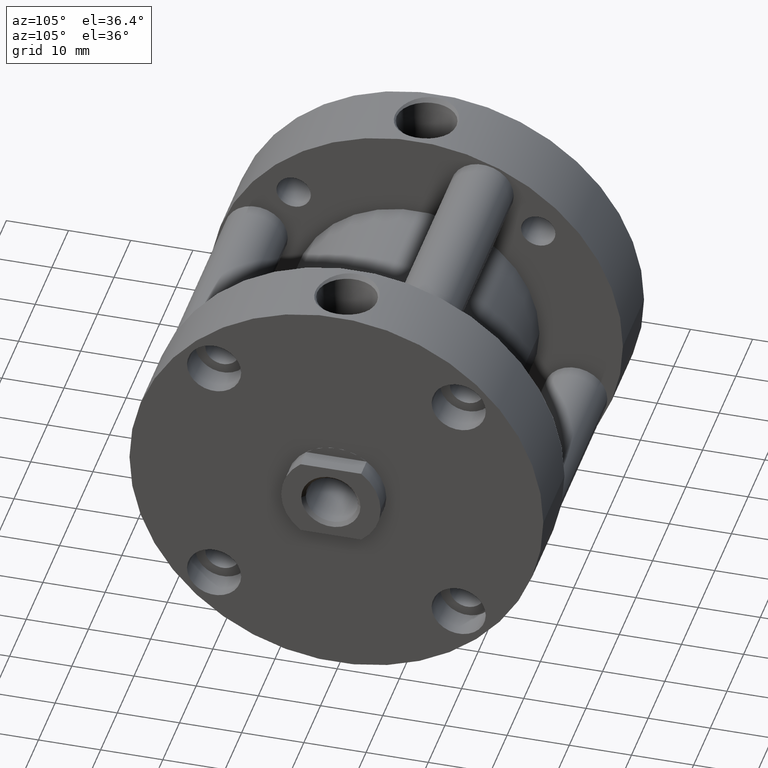
[diagram: clean part render]
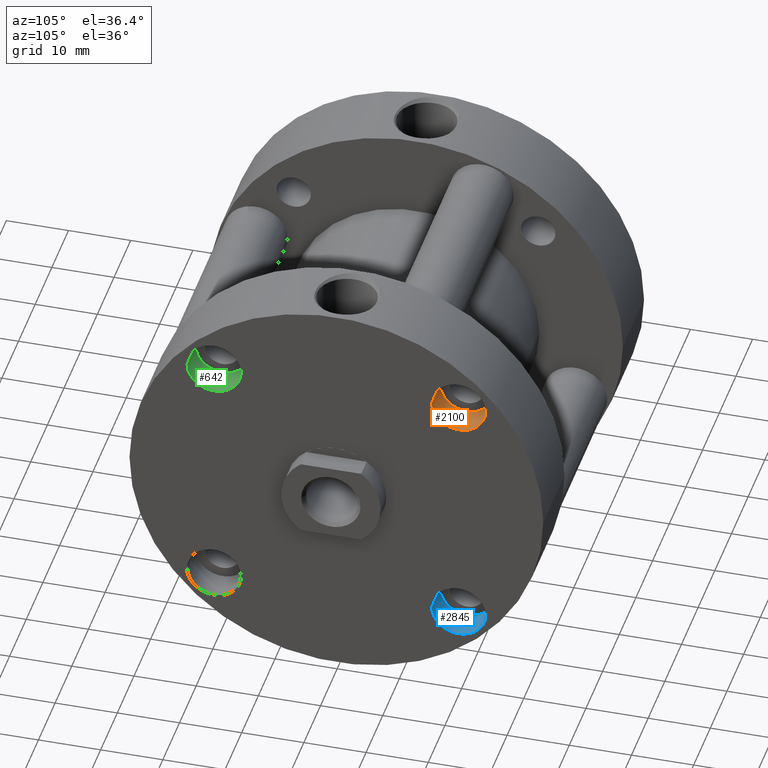
[diagram: same view with three faces highlighted in distinct colors, each labeled with its STEP entity id]
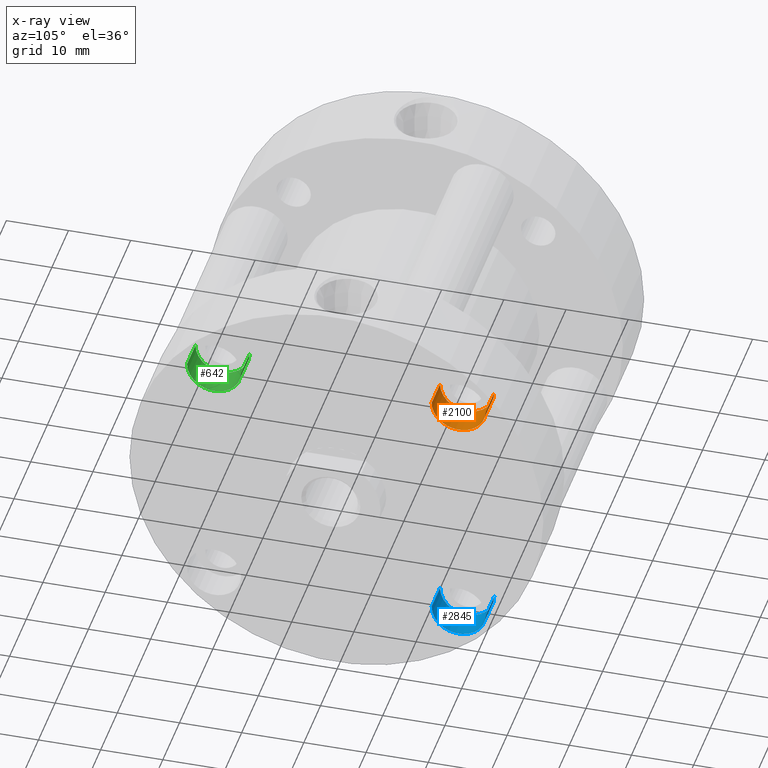
[diagram: x-ray of the same camera — body ghosted, the three highlighted faces saturated]
A machine part, auxiliary view with three faces highlighted in distinct colors.
The next image is the same camera in x-ray (body ghosted, the three faces saturated) — at least one of them is partly hidden behind the body in this view.
Their STEP definitions:

[orange] entity #2100 — the highlighted cylindrical surface (edge-blend (fillet) strip) has radius 4.3561 mm, axis along (1, 0, 0).
#30 = EDGE_LOOP ( 'NONE', ( #4426, #975, #4103, #3921 ) ) ;
#403 = CIRCLE ( 'NONE', #2419, 0.1715000000000004900 ) ;
#420 = DIRECTION ( 'NONE',  ( -0.0000000000000000000, 1.000000000000000000, -0.0000000000000000000 ) ) ;
#481 = CIRCLE ( 'NONE', #1359, 0.1715000000000006200 ) ;
#497 = AXIS2_PLACEMENT_3D ( 'NONE', #2182, #420, #2887 ) ;
#577 = CYLINDRICAL_SURFACE ( 'NONE', #497, 0.1715000000000005400 ) ;
#649 = LINE ( 'NONE', #2039, #4300 ) ;
#684 = EDGE_CURVE ( 'NONE', #4571, #775, #649, .T. ) ;
#688 = FACE_OUTER_BOUND ( 'NONE', #30, .T. ) ;
#714 = CARTESIAN_POINT ( 'NONE',  ( -0.7742819253992521100, 0.3000000000000001000, -0.7742819253992521100 ) ) ;
#775 = VERTEX_POINT ( 'NONE', #4343 ) ;
#975 = ORIENTED_EDGE ( 'NONE', *, *, #3211, .F. ) ;
#1077 = DIRECTION ( 'NONE',  ( 0.0000000000000000000, 0.0000000000000000000, 1.000000000000000000 ) ) ;
#1359 = AXIS2_PLACEMENT_3D ( 'NONE', #2083, #4556, #2438 ) ;
#2039 = CARTESIAN_POINT ( 'NONE',  ( -0.7742819253992521100, 0.5000000000000000000, -0.9457819253992526500 ) ) ;
#2083 = CARTESIAN_POINT ( 'NONE',  ( -0.7742819253992521100, 0.5000000000000001100, -0.7742819253992521100 ) ) ;
#2100 = ADVANCED_FACE ( 'CYL_4', ( #688 ), #577, .F. ) ;
#2182 = CARTESIAN_POINT ( 'NONE',  ( -0.7742819253992521100, 0.5000000000000000000, -0.7742819253992521100 ) ) ;
#2244 = CARTESIAN_POINT ( 'NONE',  ( -0.7742819253992521100, 0.5000000000000001100, -0.6027819253992514600 ) ) ;
#2361 = CARTESIAN_POINT ( 'NONE',  ( -0.7742819253992521100, 0.5000000000000000000, -0.6027819253992515700 ) ) ;
#2419 = AXIS2_PLACEMENT_3D ( 'NONE', #714, #3188, #1077 ) ;
#2438 = DIRECTION ( 'NONE',  ( 0.0000000000000000000, 0.0000000000000000000, 1.000000000000000000 ) ) ;
#2578 = EDGE_CURVE ( 'NONE', #4046, #4185, #2690, .T. ) ;
#2690 = LINE ( 'NONE', #2361, #4464 ) ;
#2752 = DIRECTION ( 'NONE',  ( -0.0000000000000000000, 1.000000000000000000, -0.0000000000000000000 ) ) ;
#2887 = DIRECTION ( 'NONE',  ( 0.0000000000000000000, 0.0000000000000000000, 1.000000000000000000 ) ) ;
#3188 = DIRECTION ( 'NONE',  ( -0.0000000000000000000, 1.000000000000000000, -0.0000000000000000000 ) ) ;
#3211 = EDGE_CURVE ( 'NONE', #4046, #4571, #403, .T. ) ;
#3263 = CARTESIAN_POINT ( 'NONE',  ( -0.7742819253992521100, 0.3000000000000001000, -0.9457819253992525400 ) ) ;
#3446 = DIRECTION ( 'NONE',  ( -0.0000000000000000000, 1.000000000000000000, -0.0000000000000000000 ) ) ;
#3921 = ORIENTED_EDGE ( 'NONE', *, *, #4324, .T. ) ;
#4046 = VERTEX_POINT ( 'NONE', #4306 ) ;
#4103 = ORIENTED_EDGE ( 'NONE', *, *, #2578, .T. ) ;
#4185 = VERTEX_POINT ( 'NONE', #2244 ) ;
#4300 = VECTOR ( 'NONE', #2752, 39.37007874015748100 ) ;
#4306 = CARTESIAN_POINT ( 'NONE',  ( -0.7742819253992521100, 0.3000000000000001000, -0.6027819253992515700 ) ) ;
#4324 = EDGE_CURVE ( 'NONE', #4185, #775, #481, .T. ) ;
#4343 = CARTESIAN_POINT ( 'NONE',  ( -0.7742819253992521100, 0.5000000000000001100, -0.9457819253992526500 ) ) ;
#4426 = ORIENTED_EDGE ( 'NONE', *, *, #684, .F. ) ;
#4464 = VECTOR ( 'NONE', #3446, 39.37007874015748100 ) ;
#4556 = DIRECTION ( 'NONE',  ( -0.0000000000000000000, 1.000000000000000000, -0.0000000000000000000 ) ) ;
#4571 = VERTEX_POINT ( 'NONE', #3263 ) ;

[blue] entity #2845 — the highlighted cylindrical surface (edge-blend (fillet) strip) has radius 4.3561 mm, axis along (1, 0, 0).
#35 = CARTESIAN_POINT ( 'NONE',  ( 0.7742819253992521100, 0.5000000000000000000, -0.7742819253992521100 ) ) ;
#402 = ORIENTED_EDGE ( 'NONE', *, *, #2895, .T. ) ;
#492 = VERTEX_POINT ( 'NONE', #1370 ) ;
#593 = DIRECTION ( 'NONE',  ( 0.0000000000000000000, 0.0000000000000000000, 1.000000000000000000 ) ) ;
#615 = EDGE_CURVE ( 'NONE', #1127, #683, #1916, .T. ) ;
#683 = VERTEX_POINT ( 'NONE', #2388 ) ;
#698 = DIRECTION ( 'NONE',  ( -0.0000000000000000000, 1.000000000000000000, -0.0000000000000000000 ) ) ;
#751 = LINE ( 'NONE', #1143, #4511 ) ;
#855 = EDGE_LOOP ( 'NONE', ( #2951, #3387, #402, #2173 ) ) ;
#1127 = VERTEX_POINT ( 'NONE', #2436 ) ;
#1143 = CARTESIAN_POINT ( 'NONE',  ( 0.7742819253992521100, 0.5000000000000000000, -0.6027819253992515700 ) ) ;
#1254 = CIRCLE ( 'NONE', #1702, 0.1715000000000004900 ) ;
#1370 = CARTESIAN_POINT ( 'NONE',  ( 0.7742819253992521100, 0.3000000000000001000, -0.6027819253992515700 ) ) ;
#1379 = AXIS2_PLACEMENT_3D ( 'NONE', #3319, #2708, #593 ) ;
#1620 = LINE ( 'NONE', #4304, #3404 ) ;
#1702 = AXIS2_PLACEMENT_3D ( 'NONE', #2811, #698, #3170 ) ;
#1906 = FACE_OUTER_BOUND ( 'NONE', #855, .T. ) ;
#1916 = CIRCLE ( 'NONE', #1379, 0.1715000000000006200 ) ;
#1997 = VERTEX_POINT ( 'NONE', #3314 ) ;
#2097 = EDGE_CURVE ( 'NONE', #1997, #683, #1620, .T. ) ;
#2147 = DIRECTION ( 'NONE',  ( 0.0000000000000000000, 0.0000000000000000000, 1.000000000000000000 ) ) ;
#2173 = ORIENTED_EDGE ( 'NONE', *, *, #615, .T. ) ;
#2352 = AXIS2_PLACEMENT_3D ( 'NONE', #35, #2859, #2147 ) ;
#2388 = CARTESIAN_POINT ( 'NONE',  ( 0.7742819253992521100, 0.5000000000000001100, -0.9457819253992526500 ) ) ;
#2436 = CARTESIAN_POINT ( 'NONE',  ( 0.7742819253992521100, 0.5000000000000001100, -0.6027819253992514600 ) ) ;
#2708 = DIRECTION ( 'NONE',  ( -0.0000000000000000000, 1.000000000000000000, -0.0000000000000000000 ) ) ;
#2742 = CYLINDRICAL_SURFACE ( 'NONE', #2352, 0.1715000000000005400 ) ;
#2811 = CARTESIAN_POINT ( 'NONE',  ( 0.7742819253992521100, 0.3000000000000001000, -0.7742819253992521100 ) ) ;
#2845 = ADVANCED_FACE ( 'CYL_10', ( #1906 ), #2742, .F. ) ;
#2859 = DIRECTION ( 'NONE',  ( -0.0000000000000000000, 1.000000000000000000, -0.0000000000000000000 ) ) ;
#2885 = DIRECTION ( 'NONE',  ( -0.0000000000000000000, 1.000000000000000000, -0.0000000000000000000 ) ) ;
#2895 = EDGE_CURVE ( 'NONE', #492, #1127, #751, .T. ) ;
#2951 = ORIENTED_EDGE ( 'NONE', *, *, #2097, .F. ) ;
#3170 = DIRECTION ( 'NONE',  ( 0.0000000000000000000, 0.0000000000000000000, 1.000000000000000000 ) ) ;
#3199 = EDGE_CURVE ( 'NONE', #492, #1997, #1254, .T. ) ;
#3314 = CARTESIAN_POINT ( 'NONE',  ( 0.7742819253992521100, 0.3000000000000001000, -0.9457819253992525400 ) ) ;
#3319 = CARTESIAN_POINT ( 'NONE',  ( 0.7742819253992521100, 0.5000000000000001100, -0.7742819253992521100 ) ) ;
#3387 = ORIENTED_EDGE ( 'NONE', *, *, #3199, .F. ) ;
#3404 = VECTOR ( 'NONE', #3957, 39.37007874015748100 ) ;
#3957 = DIRECTION ( 'NONE',  ( -0.0000000000000000000, 1.000000000000000000, -0.0000000000000000000 ) ) ;
#4304 = CARTESIAN_POINT ( 'NONE',  ( 0.7742819253992521100, 0.5000000000000000000, -0.9457819253992526500 ) ) ;
#4511 = VECTOR ( 'NONE', #2885, 39.37007874015748100 ) ;

[green] entity #642 — the highlighted cylindrical surface (edge-blend (fillet) strip) has radius 4.3561 mm, axis along (1, 0, 0).
#98 = EDGE_CURVE ( 'NONE', #4024, #1386, #1176, .T. ) ;
#146 = CARTESIAN_POINT ( 'NONE',  ( -0.7742819253992521100, 0.5000000000000000000, 0.6027819253992515700 ) ) ;
#208 = CARTESIAN_POINT ( 'NONE',  ( -0.7742819253992521100, 0.5000000000000001100, 0.9457819253992526500 ) ) ;
#242 = LINE ( 'NONE', #146, #3915 ) ;
#475 = CARTESIAN_POINT ( 'NONE',  ( -0.7742819253992521100, 0.5000000000000001100, 0.7742819253992521100 ) ) ;
#551 = DIRECTION ( 'NONE',  ( -0.0000000000000000000, 1.000000000000000000, -0.0000000000000000000 ) ) ;
#606 = DIRECTION ( 'NONE',  ( 0.0000000000000000000, 0.0000000000000000000, 1.000000000000000000 ) ) ;
#642 = ADVANCED_FACE ( 'CYL_6', ( #3714 ), #3598, .F. ) ;
#658 = ORIENTED_EDGE ( 'NONE', *, *, #3513, .F. ) ;
#770 = EDGE_CURVE ( 'NONE', #1386, #3239, #3652, .T. ) ;
#834 = DIRECTION ( 'NONE',  ( 0.0000000000000000000, 0.0000000000000000000, 1.000000000000000000 ) ) ;
#865 = ORIENTED_EDGE ( 'NONE', *, *, #98, .T. ) ;
#1176 = LINE ( 'NONE', #2666, #3890 ) ;
#1209 = CARTESIAN_POINT ( 'NONE',  ( -0.7742819253992521100, 0.3000000000000001000, 0.6027819253992515700 ) ) ;
#1303 = CARTESIAN_POINT ( 'NONE',  ( -0.7742819253992521100, 0.5000000000000000000, 0.7742819253992521100 ) ) ;
#1386 = VERTEX_POINT ( 'NONE', #208 ) ;
#1602 = ORIENTED_EDGE ( 'NONE', *, *, #3686, .F. ) ;
#1988 = AXIS2_PLACEMENT_3D ( 'NONE', #475, #2947, #834 ) ;
#2071 = CARTESIAN_POINT ( 'NONE',  ( -0.7742819253992521100, 0.3000000000000001000, 0.7742819253992521100 ) ) ;
#2134 = CARTESIAN_POINT ( 'NONE',  ( -0.7742819253992521100, 0.5000000000000001100, 0.6027819253992514600 ) ) ;
#2166 = CARTESIAN_POINT ( 'NONE',  ( -0.7742819253992521100, 0.3000000000000001000, 0.9457819253992525400 ) ) ;
#2421 = DIRECTION ( 'NONE',  ( 0.0000000000000000000, 0.0000000000000000000, 1.000000000000000000 ) ) ;
#2666 = CARTESIAN_POINT ( 'NONE',  ( -0.7742819253992521100, 0.5000000000000000000, 0.9457819253992526500 ) ) ;
#2795 = AXIS2_PLACEMENT_3D ( 'NONE', #1303, #4483, #606 ) ;
#2947 = DIRECTION ( 'NONE',  ( -0.0000000000000000000, 1.000000000000000000, -0.0000000000000000000 ) ) ;
#3239 = VERTEX_POINT ( 'NONE', #2134 ) ;
#3331 = DIRECTION ( 'NONE',  ( -0.0000000000000000000, 1.000000000000000000, -0.0000000000000000000 ) ) ;
#3445 = EDGE_LOOP ( 'NONE', ( #1602, #658, #865, #3994 ) ) ;
#3513 = EDGE_CURVE ( 'NONE', #4024, #3677, #3636, .T. ) ;
#3537 = AXIS2_PLACEMENT_3D ( 'NONE', #2071, #4544, #2421 ) ;
#3598 = CYLINDRICAL_SURFACE ( 'NONE', #2795, 0.1715000000000006200 ) ;
#3636 = CIRCLE ( 'NONE', #3537, 0.1715000000000004900 ) ;
#3652 = CIRCLE ( 'NONE', #1988, 0.1715000000000006200 ) ;
#3677 = VERTEX_POINT ( 'NONE', #1209 ) ;
#3686 = EDGE_CURVE ( 'NONE', #3677, #3239, #242, .T. ) ;
#3714 = FACE_OUTER_BOUND ( 'NONE', #3445, .T. ) ;
#3890 = VECTOR ( 'NONE', #551, 39.37007874015748100 ) ;
#3915 = VECTOR ( 'NONE', #3331, 39.37007874015748100 ) ;
#3994 = ORIENTED_EDGE ( 'NONE', *, *, #770, .T. ) ;
#4024 = VERTEX_POINT ( 'NONE', #2166 ) ;
#4483 = DIRECTION ( 'NONE',  ( -0.0000000000000000000, 1.000000000000000000, -0.0000000000000000000 ) ) ;
#4544 = DIRECTION ( 'NONE',  ( -0.0000000000000000000, 1.000000000000000000, -0.0000000000000000000 ) ) ;